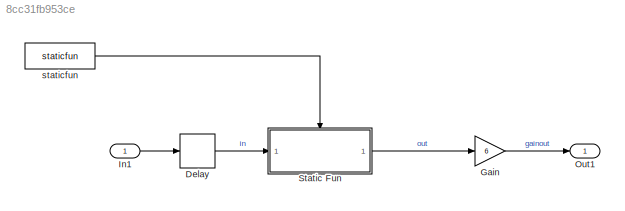
MODEL slx_8cc31fb953ce
KIND model
BLOCK [Delay] Delay
  CodeGenStateStorageClass = ExportedGlobal
  DelayLength = 1
  InitialCondition = 0
  InputPortMap = u0
  Ports = [1, 1]
  StateName = in_old
BLOCK [Gain] Gain
  Gain = 6
  OutDataTypeStr = Inherit: Inherit via internal rule
  ParamDataTypeStr = Inherit: Inherit via internal rule
  SaturateOnIntegerOverflow = off
BLOCK [Inport] In1
  IconDisplay = Port number
BLOCK [Outport] Out1
  IconDisplay = Port number
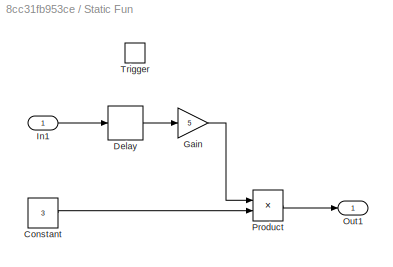
BLOCK [SubSystem] Static Fun
  Ports = [1, 1, 0, 1]
  RequestExecContextInheritance = off
  TreatAsAtomicUnit = on
BLOCK [Constant] Static Fun/Constant
  Value = 3
BLOCK [Delay] Static Fun/Delay
  CodeGenStateStorageClass = ExportedGlobal
  DelayLength = 1
  InitialCondition = 0
  InputPortMap = u0
  Ports = [1, 1]
  StateName = old
BLOCK [Gain] Static Fun/Gain
  Gain = 5
  OutDataTypeStr = Inherit: Inherit via internal rule
  ParamDataTypeStr = Inherit: Inherit via internal rule
  SaturateOnIntegerOverflow = off
BLOCK [Inport] Static Fun/In1
  IconDisplay = Port number
BLOCK [Outport] Static Fun/Out1
  IconDisplay = Port number
BLOCK [Product] Static Fun/Product
  InputSameDT = off
  OutDataTypeStr = Inherit: Inherit via internal rule
  Ports = [2, 1]
  RndMeth = Floor
  SaturateOnIntegerOverflow = off
BLOCK [TriggerPort] Static Fun/Trigger
  PortDimensions = 1
  Ports = []
  StatesWhenEnabling = held
  TriggerType = function-call
BLOCK [Reference] staticfun  REF=periblklib/Static Function/staticfun
  Ports = [0, 1]
  SourceBlock = periblklib/Static Function/staticfun
  SourceType = Hyo_Custon
  g_fcnname = doTestStaticFunc
LINE Delay:1 -> Static Fun:1
LINE Gain:1 -> Out1:1
LINE In1:1 -> Delay:1
LINE Static Fun/Constant:1 -> Static Fun/Product:2
LINE Static Fun/Delay:1 -> Static Fun/Gain:1
LINE Static Fun/Gain:1 -> Static Fun/Product:1
LINE Static Fun/In1:1 -> Static Fun/Delay:1
LINE Static Fun/Product:1 -> Static Fun/Out1:1
LINE Static Fun:1 -> Gain:1
LINE staticfun:1 -> Static Fun:trigger
